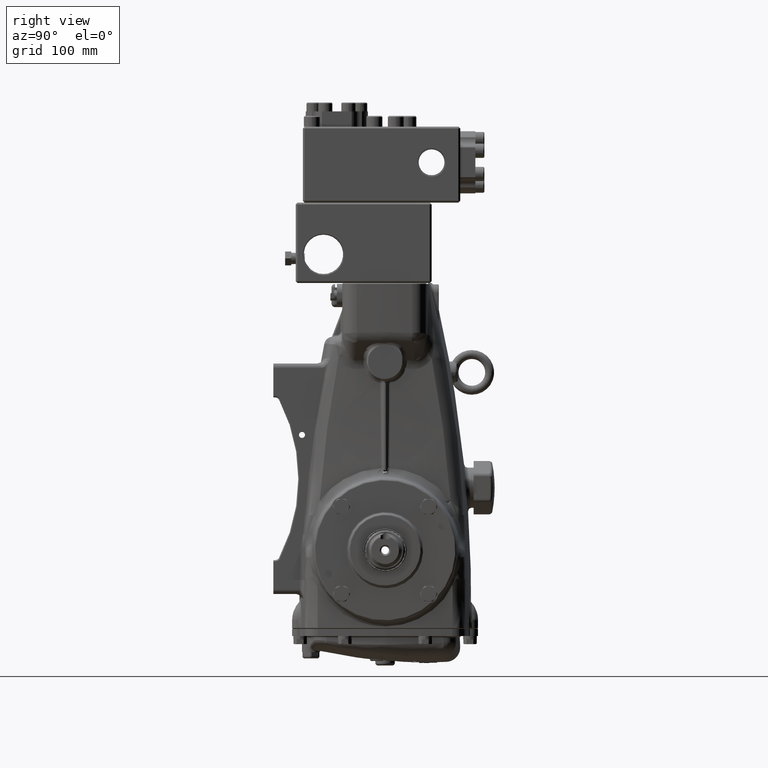
[diagram: clean part render]
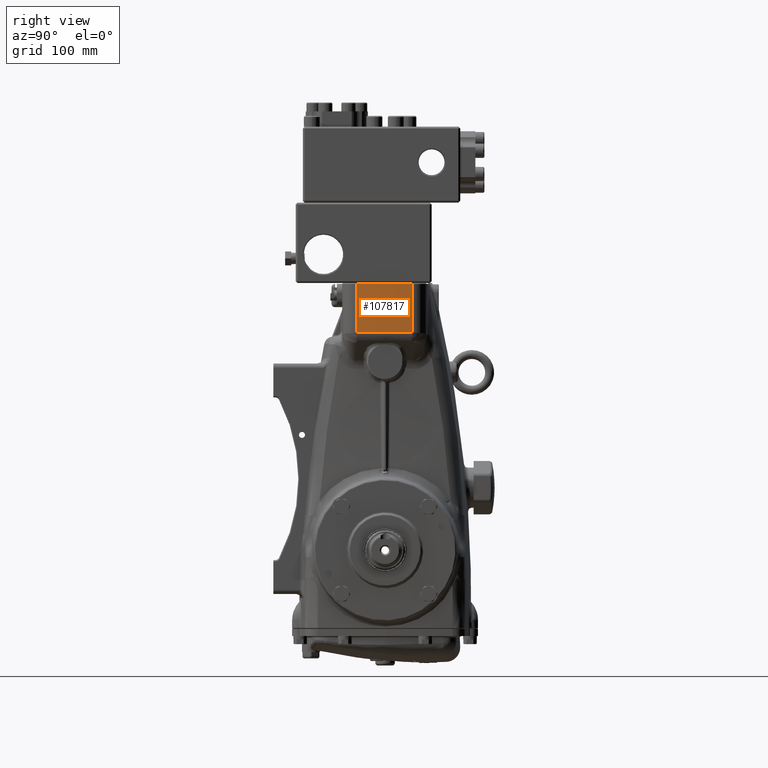
[diagram: same view with one face highlighted and labeled with its STEP entity id]
A machine part, right view. The second image highlights one B-rep face of the part: STEP entity #107817.
In plain terms, the highlighted cylindrical surface (partial cylindrical patch) has radius 800 mm, axis along (0, 0, 1).
Its self-contained STEP definition (entity closure, byte-faithful):
#2064 = CARTESIAN_POINT ( 'NONE',  ( 4.586614173228348079, 0.0000000000000000000, 11.73228346456693139 ) ) ;
#2078 = CARTESIAN_POINT ( 'NONE',  ( 4.586614173228346303, 0.0000000000000000000, 9.609100249467996235 ) ) ;
#4636 = ORIENTED_EDGE ( 'NONE', *, *, #84455, .F. ) ;
#6590 = VERTEX_POINT ( 'NONE', #97532 ) ;
#6756 = EDGE_LOOP ( 'NONE', ( #4636, #26315, #93112, #98787, #8035, #99031 ) ) ;
#8035 = ORIENTED_EDGE ( 'NONE', *, *, #119314, .F. ) ;
#8412 = CARTESIAN_POINT ( 'NONE',  ( 4.586614173228346303, 0.0000000000000000000, 9.609100249467996235 ) ) ;
#8495 = AXIS2_PLACEMENT_3D ( 'NONE', #62605, #99960, #16114 ) ;
#8905 = VECTOR ( 'NONE', #20599, 39.37007874015748143 ) ;
#12017 = EDGE_CURVE ( 'NONE', #33903, #83542, #110413, .T. ) ;
#13180 = CIRCLE ( 'NONE', #81573, 31.49606299212598515 ) ;
#16114 = DIRECTION ( 'NONE',  ( -1.000000000000000000, 3.552713678800500929E-14, 0.0000000000000000000 ) ) ;
#16220 = DIRECTION ( 'NONE',  ( -1.000000000000000000, 0.0000000000000000000, 0.0000000000000000000 ) ) ;
#18312 = LINE ( 'NONE', #55618, #50731 ) ;
#18591 = CARTESIAN_POINT ( 'NONE',  ( 4.586614173228348079, 0.3986725921071437861, 9.609100249467999788 ) ) ;
#20599 = DIRECTION ( 'NONE',  ( 0.0000000000000000000, 0.0000000000000000000, 1.000000000000000000 ) ) ;
#20839 = DIRECTION ( 'NONE',  ( -1.000000000000000000, 0.0000000000000000000, 0.0000000000000000000 ) ) ;
#26315 = ORIENTED_EDGE ( 'NONE', *, *, #12017, .F. ) ;
#28397 = EDGE_CURVE ( 'NONE', #72548, #38767, #61190, .T. ) ;
#30021 = CYLINDRICAL_SURFACE ( 'NONE', #81466, 31.49606299212598515 ) ;
#33903 = VERTEX_POINT ( 'NONE', #2078 ) ;
#38608 = VERTEX_POINT ( 'NONE', #51067 ) ;
#38767 = VERTEX_POINT ( 'NONE', #2064 ) ;
#45709 = CARTESIAN_POINT ( 'NONE',  ( 4.586614173228348079, -0.4157926909638400281, 9.609100249467999788 ) ) ;
#50731 = VECTOR ( 'NONE', #92982, 39.37007874015748143 ) ;
#51067 = CARTESIAN_POINT ( 'NONE',  ( 4.563911100640287266, 1.195658554601602308, 11.73228346456693139 ) ) ;
#55618 = CARTESIAN_POINT ( 'NONE',  ( 4.563911100640287266, 1.195658554601602308, 7.834645669291337988 ) ) ;
#55889 = CARTESIAN_POINT ( 'NONE',  ( 4.586614173228346303, 0.0000000000000000000, 9.609100249467996235 ) ) ;
#59175 =( BOUNDED_CURVE ( )  B_SPLINE_CURVE ( 3, ( #65076, #102415, #18591, #55889 ),
 .UNSPECIFIED., .F., .T. ) 
 B_SPLINE_CURVE_WITH_KNOTS ( ( 4, 4 ),
 ( 6.245214024113392881, 6.283185307179586232 ),
 .UNSPECIFIED. ) 
 CURVE ( )  GEOMETRIC_REPRESENTATION_ITEM ( )  RATIONAL_B_SPLINE_CURVE ( ( 1.000000000000000000, 0.9998798520809130119, 0.9998798520809130119, 1.000000000000000000 ) ) 
 REPRESENTATION_ITEM ( '' )  );
#61190 = CIRCLE ( 'NONE', #8495, 31.49606299212598515 ) ;
#62605 = CARTESIAN_POINT ( 'NONE',  ( -26.90944881889763707, 0.0000000000000000000, 11.73228346456693139 ) ) ;
#62714 = CARTESIAN_POINT ( 'NONE',  ( -26.90944881889763707, 0.0000000000000000000, 11.73228346456693139 ) ) ;
#64449 = CARTESIAN_POINT ( 'NONE',  ( 4.561919890023213853, -1.246970565460927327, 11.73228346456693139 ) ) ;
#65000 = EDGE_CURVE ( 'NONE', #6590, #33903, #59175, .T. ) ;
#65076 = CARTESIAN_POINT ( 'NONE',  ( 4.563911100640287266, 1.195658554601602308, 9.577527139217623997 ) ) ;
#67068 = LINE ( 'NONE', #104431, #8905 ) ;
#67314 = CARTESIAN_POINT ( 'NONE',  ( -26.90944881889763707, 0.0000000000000000000, 7.834645669291337988 ) ) ;
#72548 = VERTEX_POINT ( 'NONE', #64449 ) ;
#81466 = AXIS2_PLACEMENT_3D ( 'NONE', #67314, #104681, #20839 ) ;
#81573 = AXIS2_PLACEMENT_3D ( 'NONE', #62714, #100066, #16220 ) ;
#83035 = CARTESIAN_POINT ( 'NONE',  ( 4.578381669614371319, -0.8315038740503637449, 9.597651325837400549 ) ) ;
#83542 = VERTEX_POINT ( 'NONE', #119316 ) ;
#84455 = EDGE_CURVE ( 'NONE', #83542, #72548, #67068, .T. ) ;
#92570 = EDGE_CURVE ( 'NONE', #38608, #6590, #18312, .T. ) ;
#92982 = DIRECTION ( 'NONE',  ( -0.0000000000000000000, -0.0000000000000000000, -1.000000000000000000 ) ) ;
#93112 = ORIENTED_EDGE ( 'NONE', *, *, #65000, .F. ) ;
#97532 = CARTESIAN_POINT ( 'NONE',  ( 4.563911100640287266, 1.195658554601602308, 9.577527139217623997 ) ) ;
#98787 = ORIENTED_EDGE ( 'NONE', *, *, #92570, .F. ) ;
#99031 = ORIENTED_EDGE ( 'NONE', *, *, #28397, .F. ) ;
#99960 = DIRECTION ( 'NONE',  ( 0.0000000000000000000, 0.0000000000000000000, 1.000000000000000000 ) ) ;
#100066 = DIRECTION ( 'NONE',  ( 0.0000000000000000000, 0.0000000000000000000, 1.000000000000000000 ) ) ;
#102415 = CARTESIAN_POINT ( 'NONE',  ( 4.579045573014092874, 0.7972733346907870944, 9.598574614751438361 ) ) ;
#104431 = CARTESIAN_POINT ( 'NONE',  ( 4.561919890023213853, -1.246970565460927327, 7.834645669291337988 ) ) ;
#104681 = DIRECTION ( 'NONE',  ( 0.0000000000000000000, 0.0000000000000000000, 1.000000000000000000 ) ) ;
#107817 = ADVANCED_FACE ( 'NONE', ( #113856 ), #30021, .T. ) ;
#110413 =( BOUNDED_CURVE ( )  B_SPLINE_CURVE ( 3, ( #8412, #45709, #83035, #120410 ),
 .UNSPECIFIED., .F., .T. ) 
 B_SPLINE_CURVE_WITH_KNOTS ( ( 4, 4 ),
 ( 0.0000000000000000000, 0.03960166580391112634 ),
 .UNSPECIFIED. ) 
 CURVE ( )  GEOMETRIC_REPRESENTATION_ITEM ( )  RATIONAL_B_SPLINE_CURVE ( ( 1.000000000000000000, 0.9998693132754411517, 0.9998693132754411517, 1.000000000000000000 ) ) 
 REPRESENTATION_ITEM ( '' )  );
#113856 = FACE_OUTER_BOUND ( 'NONE', #6756, .T. ) ;
#119314 = EDGE_CURVE ( 'NONE', #38767, #38608, #13180, .T. ) ;
#119316 = CARTESIAN_POINT ( 'NONE',  ( 4.561919890023213853, -1.246970565460927327, 9.574757967243183288 ) ) ;
#120410 = CARTESIAN_POINT ( 'NONE',  ( 4.561919890023213853, -1.246970565460927327, 9.574757967243183288 ) ) ;